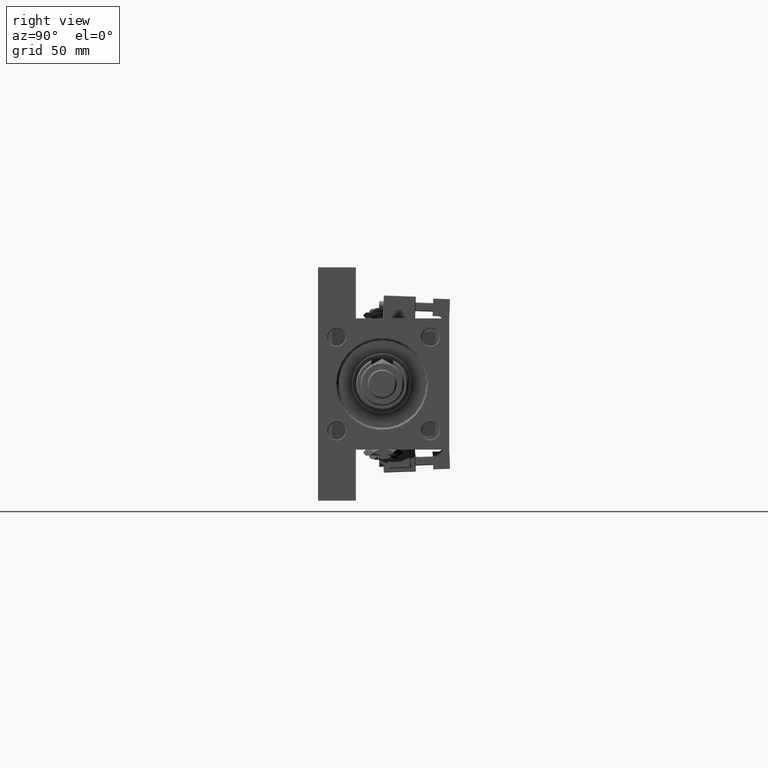
[diagram: clean part render]
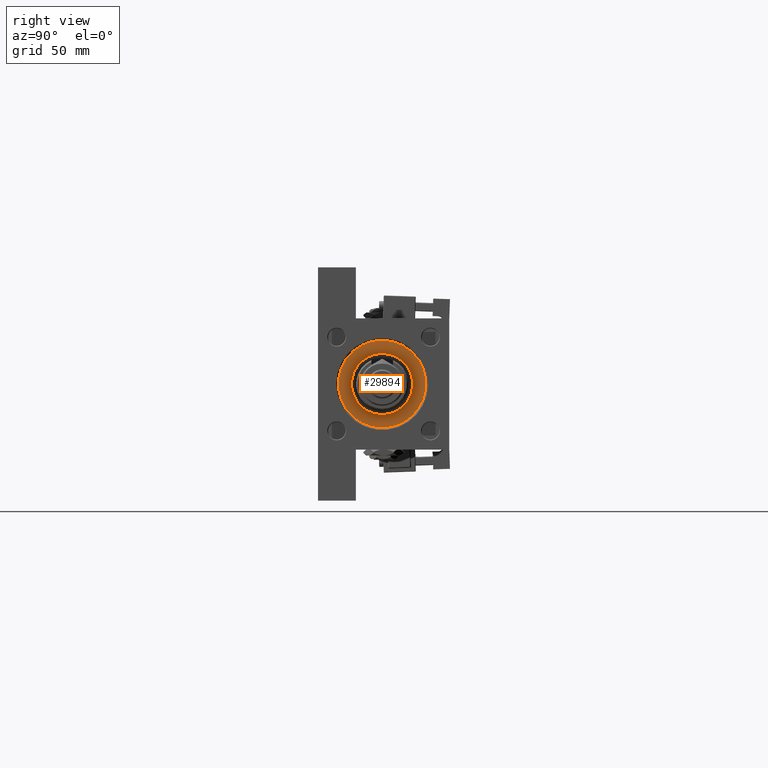
[diagram: same view with one face highlighted and labeled with its STEP entity id]
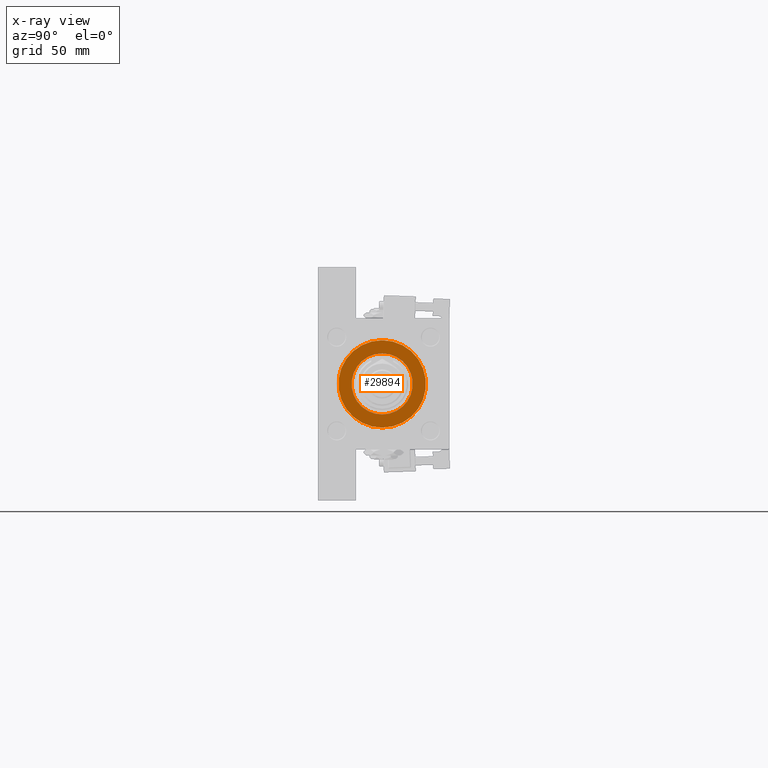
[diagram: x-ray of the same camera — body ghosted, the highlighted face saturated]
A machine part, right view. The second image highlights one B-rep face of the part: STEP entity #29894.
The next image is the same camera in x-ray: the body ghosted, the highlighted face saturated — about 0% of this face is hidden behind the body in this view.
In plain terms, the highlighted planar face has unit normal (1, 0, 0).
Its self-contained STEP definition (entity closure, byte-faithful):
#3173 = EDGE_LOOP ( 'NONE', ( #52917, #5808 ) ) ;
#4260 = ORIENTED_EDGE ( 'NONE', *, *, #13201, .F. ) ;
#5058 = DIRECTION ( 'NONE',  ( 1.000000000000000000, 0.000000000000000000, -0.000000000000000000 ) ) ;
#5808 = ORIENTED_EDGE ( 'NONE', *, *, #16604, .T. ) ;
#5990 = CARTESIAN_POINT ( 'NONE',  ( 0.000000000000000000, 0.000000000000000000, 28.69999999999999929 ) ) ;
#13106 = VERTEX_POINT ( 'NONE', #38553 ) ;
#13201 = EDGE_CURVE ( 'NONE', #13106, #14178, #53993, .T. ) ;
#13523 = CIRCLE ( 'NONE', #32904, 30.00000000000000000 ) ;
#13654 = DIRECTION ( 'NONE',  ( 0.000000000000000000, 0.000000000000000000, 1.000000000000000000 ) ) ;
#14172 = FACE_BOUND ( 'NONE', #30195, .T. ) ;
#14178 = VERTEX_POINT ( 'NONE', #22098 ) ;
#14267 = DIRECTION ( 'NONE',  ( 0.000000000000000000, 0.000000000000000000, 1.000000000000000000 ) ) ;
#15031 = AXIS2_PLACEMENT_3D ( 'NONE', #31017, #42855, #5058 ) ;
#15683 = CIRCLE ( 'NONE', #48253, 21.00000000000000000 ) ;
#16604 = EDGE_CURVE ( 'NONE', #17104, #35708, #44520, .T. ) ;
#16796 = DIRECTION ( 'NONE',  ( 0.000000000000000000, 0.000000000000000000, 1.000000000000000000 ) ) ;
#17104 = VERTEX_POINT ( 'NONE', #44169 ) ;
#19080 = CARTESIAN_POINT ( 'NONE',  ( -30.00000000000000000, 0.000000000000000000, 28.69999999999999929 ) ) ;
#19895 = AXIS2_PLACEMENT_3D ( 'NONE', #47265, #13654, #38478 ) ;
#20961 = DIRECTION ( 'NONE',  ( 1.000000000000000000, 0.000000000000000000, 0.000000000000000000 ) ) ;
#21645 = PLANE ( 'NONE',  #15031 ) ;
#22098 = CARTESIAN_POINT ( 'NONE',  ( -21.00000000000000000, 0.000000000000000000, 28.69999999999999929 ) ) ;
#28808 = ORIENTED_EDGE ( 'NONE', *, *, #50716, .F. ) ;
#29181 = CARTESIAN_POINT ( 'NONE',  ( 0.000000000000000000, 0.000000000000000000, 28.69999999999999929 ) ) ;
#29894 = ADVANCED_FACE ( 'NONE', ( #14172, #30471 ), #21645, .T. ) ;
#30195 = EDGE_LOOP ( 'NONE', ( #28808, #4260 ) ) ;
#30471 = FACE_OUTER_BOUND ( 'NONE', #3173, .T. ) ;
#31017 = CARTESIAN_POINT ( 'NONE',  ( 0.000000000000000000, 0.000000000000000000, 28.69999999999999929 ) ) ;
#31248 = CARTESIAN_POINT ( 'NONE',  ( 0.000000000000000000, 0.000000000000000000, 28.69999999999999929 ) ) ;
#32904 = AXIS2_PLACEMENT_3D ( 'NONE', #31248, #48022, #43630 ) ;
#35708 = VERTEX_POINT ( 'NONE', #19080 ) ;
#38478 = DIRECTION ( 'NONE',  ( 1.000000000000000000, 0.000000000000000000, 0.000000000000000000 ) ) ;
#38553 = CARTESIAN_POINT ( 'NONE',  ( 21.00000000000000000, 2.571758278209441661E-15, 28.69999999999999929 ) ) ;
#39627 = DIRECTION ( 'NONE',  ( 1.000000000000000000, 0.000000000000000000, 0.000000000000000000 ) ) ;
#40447 = EDGE_CURVE ( 'NONE', #35708, #17104, #13523, .T. ) ;
#42855 = DIRECTION ( 'NONE',  ( 0.000000000000000000, 0.000000000000000000, 1.000000000000000000 ) ) ;
#43630 = DIRECTION ( 'NONE',  ( 1.000000000000000000, 0.000000000000000000, 0.000000000000000000 ) ) ;
#44169 = CARTESIAN_POINT ( 'NONE',  ( 30.00000000000000000, 3.673940397442059178E-15, 28.69999999999999929 ) ) ;
#44520 = CIRCLE ( 'NONE', #19895, 30.00000000000000000 ) ;
#47265 = CARTESIAN_POINT ( 'NONE',  ( 0.000000000000000000, 0.000000000000000000, 28.69999999999999929 ) ) ;
#48022 = DIRECTION ( 'NONE',  ( 0.000000000000000000, 0.000000000000000000, 1.000000000000000000 ) ) ;
#48253 = AXIS2_PLACEMENT_3D ( 'NONE', #29181, #16796, #20961 ) ;
#50716 = EDGE_CURVE ( 'NONE', #14178, #13106, #15683, .T. ) ;
#52917 = ORIENTED_EDGE ( 'NONE', *, *, #40447, .T. ) ;
#53134 = AXIS2_PLACEMENT_3D ( 'NONE', #5990, #14267, #39627 ) ;
#53993 = CIRCLE ( 'NONE', #53134, 21.00000000000000000 ) ;